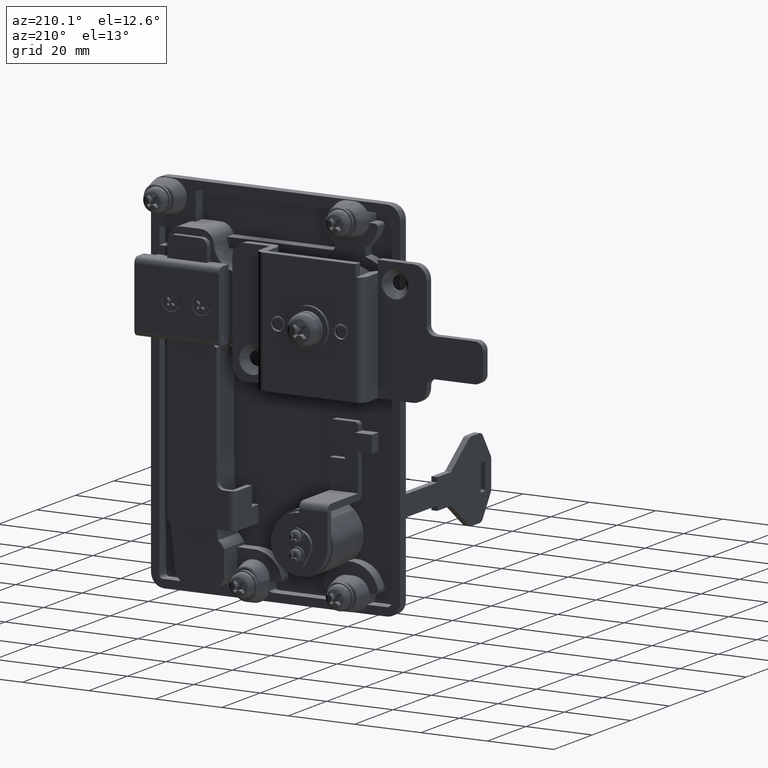
[diagram: clean part render]
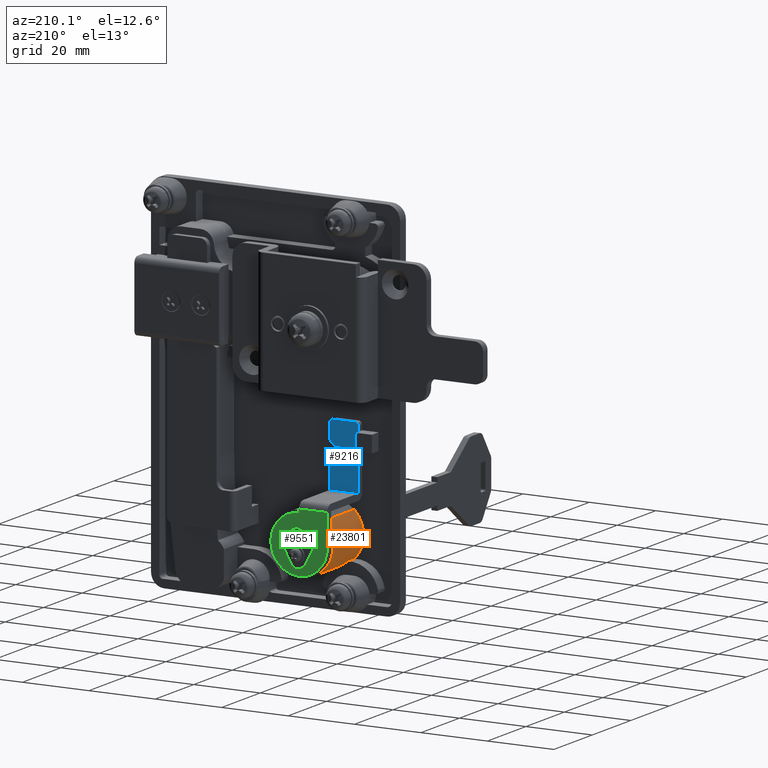
[diagram: same view with three faces highlighted in distinct colors, each labeled with its STEP entity id]
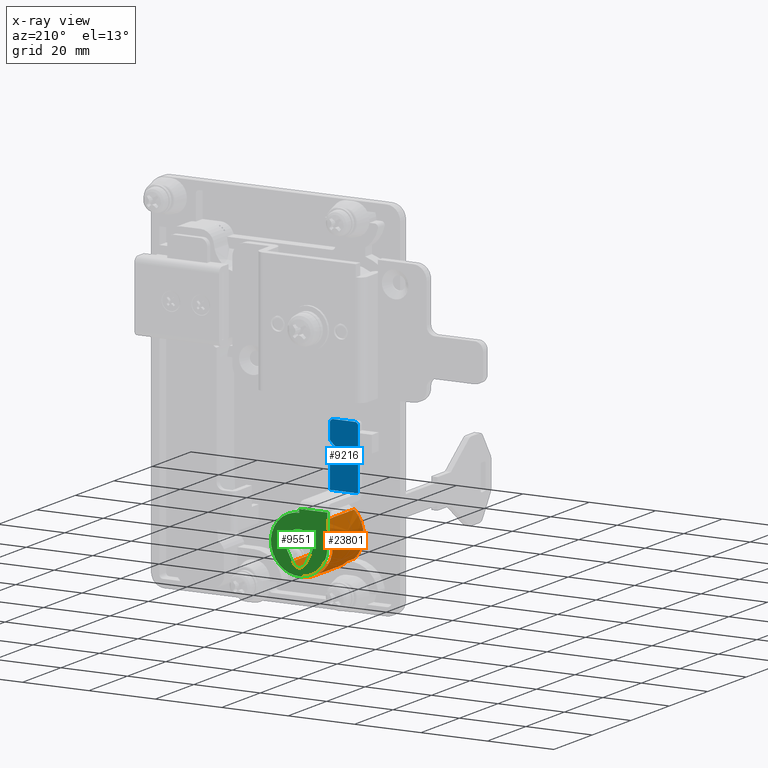
[diagram: x-ray of the same camera — body ghosted, the three highlighted faces saturated]
A machine part, auxiliary view with three faces highlighted in distinct colors.
The next image is the same camera in x-ray (body ghosted, the three faces saturated) — at least one of them is partly hidden behind the body in this view.
Their STEP definitions:

[orange] entity #23801 — the highlighted face is a freeform B-spline surface patch.
#23596=CARTESIAN_POINT('',(13.149139055522690,-8.800000000000003,-66.571244770811745));
#23597=VERTEX_POINT('',#23596);
#23627=CARTESIAN_POINT('',(0.849752320427711,-8.800000000000001,-53.428755227772783));
#23628=VERTEX_POINT('',#23627);
#23639=CARTESIAN_POINT('',(0.849751822958162,-24.800000000000001,-53.428754655632332));
#23640=VERTEX_POINT('',#23639);
#23641=CARTESIAN_POINT('',(0.849752320427711,-8.800000000000001,-53.428755227772783));
#23642=CARTESIAN_POINT('',(0.849751822958162,-24.800000000000001,-53.428754655632332));
#23643=QUASI_UNIFORM_CURVE('',1,(#23641,#23642),.UNSPECIFIED.,.F.,.U.);
#23644=EDGE_CURVE('',#23628,#23640,#23643,.T.);
#23661=CARTESIAN_POINT('',(13.149139675506570,-24.800000000000001,-66.571245228297272));
#23662=VERTEX_POINT('',#23661);
#23679=CARTESIAN_POINT('',(13.149139055522690,-8.800000000000003,-66.571244770811745));
#23680=CARTESIAN_POINT('',(13.149139675506570,-24.800000000000001,-66.571245228297272));
#23681=QUASI_UNIFORM_CURVE('',1,(#23679,#23680),.UNSPECIFIED.,.F.,.U.);
#23682=EDGE_CURVE('',#23597,#23662,#23681,.T.);
#23687=CARTESIAN_POINT('',(0.849751757659280,-8.400000000000000,-53.428754716742283));
#23688=CARTESIAN_POINT('',(-5.721493525598446,-8.400000000000000,-59.578448646301943));
#23689=CARTESIAN_POINT('',(0.428200403961224,-8.400000000000000,-66.149693929559675));
#23690=CARTESIAN_POINT('',(6.577894333520893,-8.400000000000000,-72.720939212817399));
#23691=CARTESIAN_POINT('',(13.149139616778619,-8.400000000000000,-66.571245283257724));
#23692=CARTESIAN_POINT('',(0.849751757659280,-25.210000000000001,-53.428754716742283));
#23693=CARTESIAN_POINT('',(-5.721493525598446,-25.210000000000008,-59.578448646301943));
#23694=CARTESIAN_POINT('',(0.428200403961224,-25.210000000000001,-66.149693929559675));
#23695=CARTESIAN_POINT('',(6.577894333520893,-25.210000000000008,-72.720939212817399));
#23696=CARTESIAN_POINT('',(13.149139616778619,-25.210000000000001,-66.571245283257724));
#23704=(BOUNDED_SURFACE()B_SPLINE_SURFACE(2,1,((#23687,#23692),(#23688,#23693),(#23689,#23694),(#23690,#23695),(#23691,#23696)),.UNSPECIFIED.,.F.,.F.,.U.)B_SPLINE_SURFACE_WITH_KNOTS((3,2,3),(2,2),(0.0,14.911688245431421,29.823376490862849),(0.0,16.809999999999999),.UNSPECIFIED.)GEOMETRIC_REPRESENTATION_ITEM()RATIONAL_B_SPLINE_SURFACE(((1.0,1.0),(0.707106781186548,0.707106781186548),(1.0,1.0),(0.707106781186548,0.707106781186548),(1.0,1.0)))REPRESENTATION_ITEM('')SURFACE());
#23705=CARTESIAN_POINT('',(6.999445687218950,-8.800000000000001,-68.999999999999986));
#23706=VERTEX_POINT('',#23705);
#23707=CARTESIAN_POINT('',(6.999445687218950,-8.800000000000001,-68.999999999999986));
#23708=CARTESIAN_POINT('',(7.598916230033220,-8.800000000000006,-69.000076862976030));
#23709=CARTESIAN_POINT('',(8.868358142735852,-8.799999999999988,-68.872725923430309));
#23710=CARTESIAN_POINT('',(10.557153614429980,-8.800000000000004,-68.329095483023593));
#23711=CARTESIAN_POINT('',(12.012130985436061,-8.799999999999985,-67.523747217347236));
#23712=CARTESIAN_POINT('',(12.788710070318491,-8.800000000000029,-66.908601915488589));
#23713=CARTESIAN_POINT('',(13.149139055522690,-8.800000000000003,-66.571244770811745));
#23714=B_SPLINE_CURVE_WITH_KNOTS('',3,(#23707,#23708,#23709,#23710,#23711,#23712,#23713),.UNSPECIFIED.,.F.,.U.,(4,1,1,1,4),(0.000000029451749,1.798411266824507,3.808397354786250,5.289445287865961,6.770485755350241),.UNSPECIFIED.);
#23715=EDGE_CURVE('',#23706,#23597,#23714,.T.);
#23716=ORIENTED_EDGE('',*,*,#23715,.T.);
#23717=ORIENTED_EDGE('',*,*,#23682,.T.);
#23718=CARTESIAN_POINT('',(5.959531722010261,-24.800000000000001,-68.939719175956611));
#23719=VERTEX_POINT('',#23718);
#23720=CARTESIAN_POINT('',(5.959531722010261,-24.800000000000001,-68.939719175956611));
#23721=CARTESIAN_POINT('',(6.646639215967803,-24.799999999999969,-69.019788215515732));
#23722=CARTESIAN_POINT('',(7.916465464633148,-24.800000000000029,-69.020208642118959));
#23723=CARTESIAN_POINT('',(9.795507943818885,-24.800000000000040,-68.620305146603883));
#23724=CARTESIAN_POINT('',(11.557371573417990,-24.799999999999859,-67.847832249981067));
#23725=CARTESIAN_POINT('',(12.644155532192631,-24.800000000000200,-67.044029763461069));
#23726=CARTESIAN_POINT('',(13.149139675506570,-24.800000000000001,-66.571245228297272));
#23727=B_SPLINE_CURVE_WITH_KNOTS('',3,(#23720,#23721,#23722,#23723,#23724,#23725,#23726),.UNSPECIFIED.,.F.,.U.,(4,1,1,1,4),(0.000000028163664,2.075262083605939,3.784311963711843,5.737486975085577,7.812749030528253),.UNSPECIFIED.);
#23728=EDGE_CURVE('',#23719,#23662,#23727,.T.);
#23729=ORIENTED_EDGE('',*,*,#23728,.F.);
#23730=CARTESIAN_POINT('',(5.959531722010261,-21.300000000000001,-68.939719175956611));
#23731=VERTEX_POINT('',#23730);
#23732=CARTESIAN_POINT('',(5.959531722010261,-24.800000000000001,-68.939719175956611));
#23733=CARTESIAN_POINT('',(5.959531722010261,-21.300000000000001,-68.939719175956611));
#23734=QUASI_UNIFORM_CURVE('',1,(#23732,#23733),.UNSPECIFIED.,.F.,.U.);
#23735=EDGE_CURVE('',#23719,#23731,#23734,.T.);
#23736=ORIENTED_EDGE('',*,*,#23735,.T.);
#23737=CARTESIAN_POINT('',(0.815886934019784,-21.300000000000001,-66.539388438205492));
#23738=VERTEX_POINT('',#23737);
#23739=CARTESIAN_POINT('',(0.815886934019784,-21.300000000000001,-66.539388438205492));
#23740=CARTESIAN_POINT('',(1.493078140854218,-21.300000000000011,-67.180369122410539));
#23741=CARTESIAN_POINT('',(2.747893586947899,-21.299999999999930,-68.041678810736599));
#23742=CARTESIAN_POINT('',(4.563472252580984,-21.300000000000139,-68.707102935622203));
#23743=CARTESIAN_POINT('',(5.541282604908172,-21.299999999999841,-68.891070695008636));
#23744=CARTESIAN_POINT('',(5.959531722010261,-21.300000000000001,-68.939719175956611));
#23745=B_SPLINE_CURVE_WITH_KNOTS('',3,(#23739,#23740,#23741,#23742,#23743,#23744),.UNSPECIFIED.,.F.,.U.,(4,1,1,4),(0.000000020316773,2.797149485198059,4.511503996902841,5.774723344580590),.UNSPECIFIED.);
#23746=EDGE_CURVE('',#23738,#23731,#23745,.T.);
#23747=ORIENTED_EDGE('',*,*,#23746,.F.);
#23748=CARTESIAN_POINT('',(0.815886934019784,-24.800000000000001,-66.539388438205492));
#23749=VERTEX_POINT('',#23748);
#23750=CARTESIAN_POINT('',(0.815886934019784,-21.300000000000001,-66.539388438205492));
#23751=CARTESIAN_POINT('',(0.815886934019784,-24.800000000000001,-66.539388438205492));
#23752=QUASI_UNIFORM_CURVE('',1,(#23750,#23751),.UNSPECIFIED.,.F.,.U.);
#23753=EDGE_CURVE('',#23738,#23749,#23752,.T.);
#23754=ORIENTED_EDGE('',*,*,#23753,.T.);
#23755=CARTESIAN_POINT('',(0.849751822958162,-24.800000000000001,-53.428754655632332));
#23756=CARTESIAN_POINT('',(0.374930837276018,-24.800000000000001,-53.872963650311291));
#23757=CARTESIAN_POINT('',(-0.377374662320128,-24.800000000000029,-54.748235879394571));
#23758=CARTESIAN_POINT('',(-1.195845604294726,-24.799999999999990,-56.181278606117857));
#23759=CARTESIAN_POINT('',(-1.647152215342902,-24.799999999999969,-57.405625119349132));
#23760=CARTESIAN_POINT('',(-1.938781937493781,-24.800000000000011,-58.713914400738190));
#23761=CARTESIAN_POINT('',(-2.035859503847158,-24.800000000000018,-59.938839214806002));
#23762=CARTESIAN_POINT('',(-1.936762426337531,-24.799999999999990,-61.276547082272238));
#23763=CARTESIAN_POINT('',(-1.644216596648400,-24.800000000000342,-62.664716593191692));
#23764=CARTESIAN_POINT('',(-1.130947619786312,-24.799999999999841,-63.950100620689703));
#23765=CARTESIAN_POINT('',(-0.304673771834939,-24.799999999999930,-65.330796177142659));
#23766=CARTESIAN_POINT('',(0.343359667951500,-24.800000000000040,-66.092743798900798));
#23767=CARTESIAN_POINT('',(0.815886934019784,-24.800000000000001,-66.539388438205492));
#23768=B_SPLINE_CURVE_WITH_KNOTS('',3,(#23755,#23756,#23757,#23758,#23759,#23760,#23761,#23762,#23763,#23764,#23765,#23766,#23767),.UNSPECIFIED.,.F.,.U.,(4,1,1,1,1,1,1,1,1,1,4),(0.000000098458500,1.950619620112633,3.442273646675655,4.933948335471690,5.851875512373375,7.458239082254107,8.605663886709564,9.867843278668843,11.703749543846991,12.736439467195190,14.687045205810310),.UNSPECIFIED.);
#23769=EDGE_CURVE('',#23640,#23749,#23768,.T.);
#23770=ORIENTED_EDGE('',*,*,#23769,.F.);
#23771=ORIENTED_EDGE('',*,*,#23644,.F.);
#23772=CARTESIAN_POINT('',(-2.000554312780537,-8.800000000000001,-60.000003037312403));
#23773=VERTEX_POINT('',#23772);
#23774=CARTESIAN_POINT('',(0.849752320427711,-8.800000000000001,-53.428755227772783));
#23775=CARTESIAN_POINT('',(0.457524219267665,-8.799999999999994,-53.795761713475272));
#23776=CARTESIAN_POINT('',(-0.337945349831769,-8.799999999999985,-54.686471264046993));
#23777=CARTESIAN_POINT('',(-1.178070090166174,-8.800000000000061,-56.117695891470269));
#23778=CARTESIAN_POINT('',(-1.829266931474796,-8.799999999999896,-57.928271419292933));
#23779=CARTESIAN_POINT('',(-2.000857966638305,-8.800000000000111,-59.194220934536091));
#23780=CARTESIAN_POINT('',(-2.000554312780537,-8.800000000000001,-60.000003037312403));
#23781=B_SPLINE_CURVE_WITH_KNOTS('',3,(#23774,#23775,#23776,#23777,#23778,#23779,#23780),.UNSPECIFIED.,.F.,.U.,(4,1,1,1,4),(0.000000026392839,1.611479012126827,3.568293046370655,4.949543778501131,7.366772808140190),.UNSPECIFIED.);
#23782=EDGE_CURVE('',#23628,#23773,#23781,.T.);
#23783=ORIENTED_EDGE('',*,*,#23782,.T.);
#23784=CARTESIAN_POINT('',(-2.000554312780537,-8.800000000000001,-60.000003037312403));
#23785=CARTESIAN_POINT('',(-2.000751717744824,-8.799999999999995,-60.736331708653822));
#23786=CARTESIAN_POINT('',(-1.846032564456571,-8.800000000000027,-61.987957790543113));
#23787=CARTESIAN_POINT('',(-1.232991345890535,-8.799999999999988,-63.770011344037528));
#23788=CARTESIAN_POINT('',(-0.366240624066635,-8.799999999999965,-65.278485182364093));
#23789=CARTESIAN_POINT('',(0.736538172074796,-8.800000000000088,-66.525521283173276));
#23790=CARTESIAN_POINT('',(1.889405820036898,-8.799999999999944,-67.448167046674541));
#23791=CARTESIAN_POINT('',(2.973818837447972,-8.800000000000013,-68.080172469319393));
#23792=CARTESIAN_POINT('',(4.200606271205323,-8.800000000000125,-68.588349282491393));
#23793=CARTESIAN_POINT('',(5.526838994057219,-8.799999999999654,-68.920550988307554));
#23794=CARTESIAN_POINT('',(6.520854355991013,-8.800000000000301,-69.000022480501556));
#23795=CARTESIAN_POINT('',(6.999445687218950,-8.800000000000001,-68.999999999999986));
#23796=B_SPLINE_CURVE_WITH_KNOTS('',3,(#23784,#23785,#23786,#23787,#23788,#23789,#23790,#23791,#23792,#23793,#23794,#23795),.UNSPECIFIED.,.F.,.U.,(4,1,1,1,1,1,1,1,1,4),(0.000000102336957,2.208938362130597,3.755208789851615,5.632843492472251,7.399923191921094,8.725328115786953,10.050695524447720,11.155185423652410,12.701470598359199,14.137253933988299),.UNSPECIFIED.);
#23797=EDGE_CURVE('',#23773,#23706,#23796,.T.);
#23798=ORIENTED_EDGE('',*,*,#23797,.T.);
#23799=EDGE_LOOP('',(#23716,#23717,#23729,#23736,#23747,#23754,#23770,#23771,#23783,#23798));
#23800=FACE_OUTER_BOUND('',#23799,.T.);
#23801=ADVANCED_FACE('',(#23800),#23704,.T.);

[blue] entity #9216 — the highlighted face is a freeform B-spline surface patch.
#9111=CARTESIAN_POINT('',(-1.925129296306403,-22.800000000000001,-49.449049963174332));
#9112=CARTESIAN_POINT('',(7.424020898732120,-22.800000000000001,-49.449049963174332));
#9113=CARTESIAN_POINT('',(-1.925129296306403,-22.800000000000001,-28.550949527205979));
#9114=CARTESIAN_POINT('',(7.424020898732120,-22.800000000000001,-28.550949527205979));
#9115=B_SPLINE_SURFACE_WITH_KNOTS('',1,1,((#9111,#9113),(#9112,#9114)),.UNSPECIFIED.,.F.,.F.,.U.,(2,2),(2,2),(0.0,9.349150195038522),(0.0,20.898100435968349),.UNSPECIFIED.);
#9116=CARTESIAN_POINT('',(-1.500554312781050,-22.800000000000001,-48.500000000000000));
#9117=VERTEX_POINT('',#9116);
#9118=CARTESIAN_POINT('',(6.999445687219000,-22.800000000000001,-48.500000000000000));
#9119=VERTEX_POINT('',#9118);
#9120=CARTESIAN_POINT('',(-1.500554312781050,-22.800000000000001,-48.500000000000000));
#9121=CARTESIAN_POINT('',(6.999445687219000,-22.800000000000001,-48.500000000000000));
#9122=QUASI_UNIFORM_CURVE('',1,(#9120,#9121),.UNSPECIFIED.,.F.,.U.);
#9123=EDGE_CURVE('',#9117,#9119,#9122,.T.);
#9124=ORIENTED_EDGE('',*,*,#9123,.F.);
#9125=CARTESIAN_POINT('',(-1.500554312781050,-22.800000000000001,-30.500000000000000));
#9126=VERTEX_POINT('',#9125);
#9127=CARTESIAN_POINT('',(-1.500554312781050,-22.800000000000001,-30.500000000000000));
#9128=CARTESIAN_POINT('',(-1.500554312781050,-22.800000000000001,-48.500000000000000));
#9129=QUASI_UNIFORM_CURVE('',1,(#9127,#9128),.UNSPECIFIED.,.F.,.U.);
#9130=EDGE_CURVE('',#9126,#9117,#9129,.T.);
#9131=ORIENTED_EDGE('',*,*,#9130,.F.);
#9132=CARTESIAN_POINT('',(-0.500554312781048,-22.800000000000001,-29.500000000000000));
#9133=VERTEX_POINT('',#9132);
#9134=CARTESIAN_POINT('',(-0.500554312781048,-22.800000000000001,-29.500000000000000));
#9135=CARTESIAN_POINT('',(-0.656035694248994,-22.800000000000040,-29.499740513765669));
#9136=CARTESIAN_POINT('',(-0.933956923196247,-22.799999999999930,-29.566203058491521));
#9137=CARTESIAN_POINT('',(-1.271750573112783,-22.800000000000072,-29.823120735835211));
#9138=CARTESIAN_POINT('',(-1.461154819491300,-22.800000000000001,-30.148178671779348));
#9139=CARTESIAN_POINT('',(-1.500580105296008,-22.799999999999962,-30.393651355680671));
#9140=CARTESIAN_POINT('',(-1.500554312781050,-22.800000000000001,-30.500000000000000));
#9141=B_SPLINE_CURVE_WITH_KNOTS('',3,(#9134,#9135,#9136,#9137,#9138,#9139,#9140),.UNSPECIFIED.,.F.,.U.,(4,1,1,1,4),(0.000000316501221,0.466345497262820,0.834493002449350,1.251763211211169,1.570835744397934),.UNSPECIFIED.);
#9142=EDGE_CURVE('',#9133,#9126,#9141,.T.);
#9143=ORIENTED_EDGE('',*,*,#9142,.F.);
#9144=CARTESIAN_POINT('',(5.999445687218950,-22.800000000000001,-29.500000000000000));
#9145=VERTEX_POINT('',#9144);
#9146=CARTESIAN_POINT('',(5.999445687218950,-22.800000000000001,-29.500000000000000));
#9147=CARTESIAN_POINT('',(-0.500554312781048,-22.800000000000001,-29.500000000000000));
#9148=QUASI_UNIFORM_CURVE('',1,(#9146,#9147),.UNSPECIFIED.,.F.,.U.);
#9149=EDGE_CURVE('',#9145,#9133,#9148,.T.);
#9150=ORIENTED_EDGE('',*,*,#9149,.F.);
#9151=CARTESIAN_POINT('',(6.999445687218950,-22.800000000000001,-30.500000000000000));
#9152=VERTEX_POINT('',#9151);
#9153=CARTESIAN_POINT('',(6.999445687218950,-22.800000000000001,-30.500000000000000));
#9154=CARTESIAN_POINT('',(6.999498464484405,-22.800000000000001,-30.393638525670841));
#9155=CARTESIAN_POINT('',(6.967811499588282,-22.800000000000011,-30.197329036259280));
#9156=CARTESIAN_POINT('',(6.823048154534193,-22.799999999999919,-29.900485652990142));
#9157=CARTESIAN_POINT('',(6.581285831122334,-22.800000000000232,-29.658649949622561));
#9158=CARTESIAN_POINT('',(6.277610210348446,-22.799999999999638,-29.524196651346710));
#9159=CARTESIAN_POINT('',(6.081251346209860,-22.800000000000370,-29.499985637366311));
#9160=CARTESIAN_POINT('',(5.999445687218950,-22.800000000000001,-29.500000000000000));
#9161=B_SPLINE_CURVE_WITH_KNOTS('',3,(#9153,#9154,#9155,#9156,#9157,#9158,#9159,#9160),.UNSPECIFIED.,.F.,.U.,(4,1,1,1,1,4),(0.000000316502047,0.319072849688409,0.589085057894518,0.981751003005262,1.325410543751386,1.570835744397907),.UNSPECIFIED.);
#9162=EDGE_CURVE('',#9152,#9145,#9161,.T.);
#9163=ORIENTED_EDGE('',*,*,#9162,.F.);
#9164=CARTESIAN_POINT('',(6.999445687218950,-22.800000000000001,-35.200000000000003));
#9165=VERTEX_POINT('',#9164);
#9166=CARTESIAN_POINT('',(6.999445687218950,-22.800000000000001,-35.200000000000003));
#9167=CARTESIAN_POINT('',(6.999445687218950,-22.800000000000001,-30.500000000000000));
#9168=QUASI_UNIFORM_CURVE('',1,(#9166,#9167),.UNSPECIFIED.,.F.,.U.);
#9169=EDGE_CURVE('',#9165,#9152,#9168,.T.);
#9170=ORIENTED_EDGE('',*,*,#9169,.F.);
#9171=CARTESIAN_POINT('',(5.780157481492820,-22.800000000000001,-36.419288205726197));
#9172=VERTEX_POINT('',#9171);
#9173=CARTESIAN_POINT('',(5.780157481492820,-22.800000000000001,-36.419288205726197));
#9174=CARTESIAN_POINT('',(6.999445687218950,-22.800000000000001,-35.200000000000003));
#9175=QUASI_UNIFORM_CURVE('',1,(#9173,#9174),.UNSPECIFIED.,.F.,.U.);
#9176=EDGE_CURVE('',#9172,#9165,#9175,.T.);
#9177=ORIENTED_EDGE('',*,*,#9176,.F.);
#9178=CARTESIAN_POINT('',(5.085445687218960,-22.800000000000001,-36.700000000000003));
#9179=VERTEX_POINT('',#9178);
#9180=CARTESIAN_POINT('',(5.085445687218960,-22.800000000000001,-36.700000000000003));
#9181=CARTESIAN_POINT('',(5.221473515640985,-22.800000000000018,-36.700179832611283));
#9182=CARTESIAN_POINT('',(5.477313513768912,-22.799999999999990,-36.646882687560620));
#9183=CARTESIAN_POINT('',(5.693895948510704,-22.800000000000011,-36.502741690395887));
#9184=CARTESIAN_POINT('',(5.780157481492820,-22.800000000000001,-36.419288205726197));
#9185=B_SPLINE_CURVE_WITH_KNOTS('',3,(#9180,#9181,#9182,#9183,#9184),.UNSPECIFIED.,.F.,.U.,(4,1,4),(0.000000063021350,0.408001085567559,0.768037570588722),.UNSPECIFIED.);
#9186=EDGE_CURVE('',#9179,#9172,#9185,.T.);
#9187=ORIENTED_EDGE('',*,*,#9186,.F.);
#9188=CARTESIAN_POINT('',(2.499445687218950,-22.800000000000001,-36.700000000000003));
#9189=VERTEX_POINT('',#9188);
#9190=CARTESIAN_POINT('',(2.499445687218950,-22.800000000000001,-36.700000000000003));
#9191=CARTESIAN_POINT('',(5.085445687218960,-22.800000000000001,-36.700000000000003));
#9192=QUASI_UNIFORM_CURVE('',1,(#9190,#9191),.UNSPECIFIED.,.F.,.U.);
#9193=EDGE_CURVE('',#9189,#9179,#9192,.T.);
#9194=ORIENTED_EDGE('',*,*,#9193,.F.);
#9195=CARTESIAN_POINT('',(2.499445687218950,-22.800000000000001,-39.700000000000003));
#9196=VERTEX_POINT('',#9195);
#9197=CARTESIAN_POINT('',(2.499445687218950,-22.800000000000001,-39.700000000000003));
#9198=CARTESIAN_POINT('',(2.499445687218950,-22.800000000000001,-36.700000000000003));
#9199=QUASI_UNIFORM_CURVE('',1,(#9197,#9198),.UNSPECIFIED.,.F.,.U.);
#9200=EDGE_CURVE('',#9196,#9189,#9199,.T.);
#9201=ORIENTED_EDGE('',*,*,#9200,.F.);
#9202=CARTESIAN_POINT('',(6.999445687218950,-22.800000000000001,-39.700000000000003));
#9203=VERTEX_POINT('',#9202);
#9204=CARTESIAN_POINT('',(6.999445687218950,-22.800000000000001,-39.700000000000003));
#9205=CARTESIAN_POINT('',(2.499445687218950,-22.800000000000001,-39.700000000000003));
#9206=QUASI_UNIFORM_CURVE('',1,(#9204,#9205),.UNSPECIFIED.,.F.,.U.);
#9207=EDGE_CURVE('',#9203,#9196,#9206,.T.);
#9208=ORIENTED_EDGE('',*,*,#9207,.F.);
#9209=CARTESIAN_POINT('',(6.999445687219000,-22.800000000000001,-48.500000000000000));
#9210=CARTESIAN_POINT('',(6.999445687218950,-22.800000000000001,-39.700000000000003));
#9211=QUASI_UNIFORM_CURVE('',1,(#9209,#9210),.UNSPECIFIED.,.F.,.U.);
#9212=EDGE_CURVE('',#9119,#9203,#9211,.T.);
#9213=ORIENTED_EDGE('',*,*,#9212,.F.);
#9214=EDGE_LOOP('',(#9124,#9131,#9143,#9150,#9163,#9170,#9177,#9187,#9194,#9201,#9208,#9213));
#9215=FACE_OUTER_BOUND('',#9214,.T.);
#9216=ADVANCED_FACE('',(#9215),#9115,.F.);

[green] entity #9551 — the highlighted face is a freeform B-spline surface patch.
#8911=CARTESIAN_POINT('',(6.999445687218950,-6.800000000000139,-50.500000000000000));
#8912=VERTEX_POINT('',#8911);
#8926=CARTESIAN_POINT('',(-1.500554312781050,-6.800000000000139,-50.500000000000000));
#8927=VERTEX_POINT('',#8926);
#8928=CARTESIAN_POINT('',(-1.500554312781050,-6.800000000000139,-50.500000000000000));
#8929=CARTESIAN_POINT('',(6.999445687218950,-6.800000000000139,-50.500000000000000));
#8930=QUASI_UNIFORM_CURVE('',1,(#8928,#8929),.UNSPECIFIED.,.F.,.U.);
#8931=EDGE_CURVE('',#8927,#8912,#8930,.T.);
#9420=CARTESIAN_POINT('',(-2.349704852720043,-6.800000000000000,-69.399084002222764));
#9421=CARTESIAN_POINT('',(16.348608151938450,-6.800000000000000,-69.399084002222764));
#9422=CARTESIAN_POINT('',(-2.349704852720043,-6.800000000000000,-49.600900311667168));
#9423=CARTESIAN_POINT('',(16.348608151938450,-6.800000000000000,-49.600900311667168));
#9424=B_SPLINE_SURFACE_WITH_KNOTS('',1,1,((#9420,#9422),(#9421,#9423)),.UNSPECIFIED.,.F.,.F.,.U.,(2,2),(2,2),(0.0,18.698313004658491),(0.0,19.798183690555600),.UNSPECIFIED.);
#9425=CARTESIAN_POINT('',(-1.500554312781050,-6.800000000000139,-60.0));
#9426=VERTEX_POINT('',#9425);
#9427=CARTESIAN_POINT('',(-1.500554312781050,-6.800000000000139,-50.500000000000000));
#9428=CARTESIAN_POINT('',(-1.500554312781050,-6.800000000000139,-60.0));
#9429=QUASI_UNIFORM_CURVE('',1,(#9427,#9428),.UNSPECIFIED.,.F.,.U.);
#9430=EDGE_CURVE('',#8927,#9426,#9429,.T.);
#9431=ORIENTED_EDGE('',*,*,#9430,.F.);
#9432=ORIENTED_EDGE('',*,*,#8931,.T.);
#9433=CARTESIAN_POINT('',(6.999445687218950,-6.800000000000139,-51.500000000000000));
#9434=VERTEX_POINT('',#9433);
#9435=CARTESIAN_POINT('',(6.999445687218950,-6.800000000000139,-51.500000000000000));
#9436=CARTESIAN_POINT('',(6.999445687218950,-6.800000000000139,-50.500000000000000));
#9437=QUASI_UNIFORM_CURVE('',1,(#9435,#9436),.UNSPECIFIED.,.F.,.U.);
#9438=EDGE_CURVE('',#9434,#8912,#9437,.T.);
#9439=ORIENTED_EDGE('',*,*,#9438,.F.);
#9440=CARTESIAN_POINT('',(13.009855296867061,-6.800000000000138,-66.010405670522545));
#9441=VERTEX_POINT('',#9440);
#9442=CARTESIAN_POINT('',(13.009855296867061,-6.800000000000138,-66.010405670522545));
#9443=CARTESIAN_POINT('',(13.563270715669230,-6.800000000000120,-65.457409713823111));
#9444=CARTESIAN_POINT('',(14.356678625555389,-6.800000000000171,-64.407098084205060));
#9445=CARTESIAN_POINT('',(15.110180731984910,-6.800000000000125,-62.707222555035358));
#9446=CARTESIAN_POINT('',(15.430696238675599,-6.800000000000118,-61.329208898619363));
#9447=CARTESIAN_POINT('',(15.534205665716071,-6.800000000000191,-59.896087829726689));
#9448=CARTESIAN_POINT('',(15.417226363508240,-6.800000000000062,-58.512422623482699));
#9449=CARTESIAN_POINT('',(15.056111874390821,-6.800000000000217,-57.199979849378913));
#9450=CARTESIAN_POINT('',(14.502973127694821,-6.800000000000140,-55.931068071282439));
#9451=CARTESIAN_POINT('',(13.770280901409480,-6.800000000000150,-54.781792303065437));
#9452=CARTESIAN_POINT('',(12.841065318076030,-6.800000000000129,-53.787767546544913));
#9453=CARTESIAN_POINT('',(11.785992599464519,-6.800000000000171,-52.932594786739863));
#9454=CARTESIAN_POINT('',(10.583605868772830,-6.800000000000092,-52.236744098117903));
#9455=CARTESIAN_POINT('',(8.903010920813960,-6.800000000000138,-51.649960020949173));
#9456=CARTESIAN_POINT('',(7.703552475394123,-6.800000000000207,-51.499805779137688));
#9457=CARTESIAN_POINT('',(6.999445687218950,-6.800000000000139,-51.500000000000000));
#9458=B_SPLINE_CURVE_WITH_KNOTS('',3,(#9442,#9443,#9444,#9445,#9446,#9447,#9448,#9449,#9450,#9451,#9452,#9453,#9454,#9455,#9456,#9457),.UNSPECIFIED.,.F.,.U.,(4,1,1,1,1,1,1,1,1,1,1,1,1,4),(0.000000241958734,2.346957230644005,3.911663857309051,5.554567618887761,6.571621332275266,8.214507513317088,9.700993820690602,10.639706697405520,12.360857708568711,13.769038606025880,14.707854249920210,16.429006916803910,17.915456647149039,20.027721069566649),.UNSPECIFIED.);
#9459=EDGE_CURVE('',#9441,#9434,#9458,.T.);
#9460=ORIENTED_EDGE('',*,*,#9459,.F.);
#9461=CARTESIAN_POINT('',(-1.500554312781050,-6.800000000000139,-60.0));
#9462=CARTESIAN_POINT('',(-1.501005920059546,-6.800000000000137,-60.860619502843790));
#9463=CARTESIAN_POINT('',(-1.300763138993001,-6.800000000000141,-62.164223558263878));
#9464=CARTESIAN_POINT('',(-0.666887452947129,-6.800000000000139,-63.741916581415637));
#9465=CARTESIAN_POINT('',(-0.007056657397847,-6.800000000000133,-64.870134484068927));
#9466=CARTESIAN_POINT('',(0.750850444687801,-6.800000000000146,-65.805268741526334));
#9467=CARTESIAN_POINT('',(1.709232942781486,-6.800000000000140,-66.692811463896589));
#9468=CARTESIAN_POINT('',(2.940831413966526,-6.800000000000139,-67.535148540119337));
#9469=CARTESIAN_POINT('',(4.586810361840816,-6.800000000000139,-68.225877051178585));
#9470=CARTESIAN_POINT('',(6.473924670000791,-6.800000000000138,-68.553299327706910));
#9471=CARTESIAN_POINT('',(8.255948358730414,-6.800000000000134,-68.465745096261202));
#9472=CARTESIAN_POINT('',(9.676317886504702,-6.800000000000147,-68.100566678065263));
#9473=CARTESIAN_POINT('',(10.903796505328360,-6.800000000000123,-67.583289875980213));
#9474=CARTESIAN_POINT('',(11.980541074605281,-6.800000000000146,-66.935660327647852));
#9475=CARTESIAN_POINT('',(12.696408774312919,-6.800000000000178,-66.323884531610588));
#9476=CARTESIAN_POINT('',(13.009855296867061,-6.800000000000138,-66.010405670522545));
#9477=B_SPLINE_CURVE_WITH_KNOTS('',3,(#9461,#9462,#9463,#9464,#9465,#9466,#9467,#9468,#9469,#9470,#9471,#9472,#9473,#9474,#9475,#9476),.UNSPECIFIED.,.F.,.U.,(4,1,1,1,1,1,1,1,1,1,1,1,1,4),(0.000000241945532,2.581677185058346,3.911664945363093,5.085167344357183,6.493367918216569,7.510435935615305,8.996839634887586,10.952608252982021,12.830226601453459,14.707858340990640,16.272547617351329,17.211363451840970,18.697810933263440,20.027726640390430),.UNSPECIFIED.);
#9478=EDGE_CURVE('',#9426,#9441,#9477,.T.);
#9479=ORIENTED_EDGE('',*,*,#9478,.F.);
#9480=EDGE_LOOP('',(#9431,#9432,#9439,#9460,#9479));
#9481=FACE_OUTER_BOUND('',#9480,.T.);
#9482=CARTESIAN_POINT('',(5.152445687218861,-6.800000000000000,-65.199999999999989));
#9483=VERTEX_POINT('',#9482);
#9484=CARTESIAN_POINT('',(3.394445877589700,-6.800000000000000,-61.953000351612097));
#9485=VERTEX_POINT('',#9484);
#9486=CARTESIAN_POINT('',(5.152445687218861,-6.800000000000000,-65.199999999999989));
#9487=CARTESIAN_POINT('',(3.394445877589700,-6.800000000000000,-61.953000351612097));
#9488=QUASI_UNIFORM_CURVE('',1,(#9486,#9487),.UNSPECIFIED.,.F.,.U.);
#9489=EDGE_CURVE('',#9483,#9485,#9488,.T.);
#9490=ORIENTED_EDGE('',*,*,#9489,.F.);
#9491=CARTESIAN_POINT('',(8.846445687218930,-6.800000000000000,-65.199999999999989));
#9492=VERTEX_POINT('',#9491);
#9493=CARTESIAN_POINT('',(5.152445687218861,-6.800000000000000,-65.199999999999989));
#9494=CARTESIAN_POINT('',(5.230767561982582,-6.800000000000010,-65.344720972194068));
#9495=CARTESIAN_POINT('',(5.435300481024645,-6.799999999999984,-65.635004410447308));
#9496=CARTESIAN_POINT('',(5.778505734249898,-6.800000000000019,-65.927147850084964));
#9497=CARTESIAN_POINT('',(6.180951939377756,-6.799999999999991,-66.148936745562651));
#9498=CARTESIAN_POINT('',(6.575771634708539,-6.800000000000019,-66.275666737210230));
#9499=CARTESIAN_POINT('',(7.082023144229503,-6.799999999999973,-66.318292846145383));
#9500=CARTESIAN_POINT('',(7.539321208500027,-6.799999999999999,-66.248661322877993));
#9501=CARTESIAN_POINT('',(8.022186721360196,-6.799999999999994,-66.057074018987095));
#9502=CARTESIAN_POINT('',(8.478723470668729,-6.800000000000045,-65.736028947447551));
#9503=CARTESIAN_POINT('',(8.740220763768123,-6.799999999999884,-65.396476099695107));
#9504=CARTESIAN_POINT('',(8.846445687218930,-6.800000000000000,-65.199999999999989));
#9505=B_SPLINE_CURVE_WITH_KNOTS('',3,(#9493,#9494,#9495,#9496,#9497,#9498,#9499,#9500,#9501,#9502,#9503,#9504),.UNSPECIFIED.,.F.,.U.,(4,1,1,1,1,1,1,1,1,4),(0.000000388309262,0.493674485570257,1.057953238237481,1.340079271859112,1.869062285813278,2.292173436132634,2.856459204233280,3.244393419599334,3.843925926201354,4.513942947041000),.UNSPECIFIED.);
#9506=EDGE_CURVE('',#9483,#9492,#9505,.T.);
#9507=ORIENTED_EDGE('',*,*,#9506,.T.);
#9508=CARTESIAN_POINT('',(10.604445630461340,-6.800000000000000,-61.953000104830600));
#9509=VERTEX_POINT('',#9508);
#9510=CARTESIAN_POINT('',(10.604445630461340,-6.800000000000000,-61.953000104830600));
#9511=CARTESIAN_POINT('',(8.846445687218930,-6.800000000000000,-65.199999999999989));
#9512=QUASI_UNIFORM_CURVE('',1,(#9510,#9511),.UNSPECIFIED.,.F.,.U.);
#9513=EDGE_CURVE('',#9509,#9492,#9512,.T.);
#9514=ORIENTED_EDGE('',*,*,#9513,.F.);
#9515=CARTESIAN_POINT('',(6.999441076117178,-6.800000000000000,-55.901699563837411));
#9516=VERTEX_POINT('',#9515);
#9517=CARTESIAN_POINT('',(10.604445630461340,-6.800000000000000,-61.953000104830600));
#9518=CARTESIAN_POINT('',(10.772658072747539,-6.800000000000000,-61.642566581198757));
#9519=CARTESIAN_POINT('',(10.964105978518891,-6.800000000000004,-61.144048311476723));
#9520=CARTESIAN_POINT('',(11.101350089530561,-6.800000000000001,-60.359886320211281));
#9521=CARTESIAN_POINT('',(11.110836505768541,-6.800000000000014,-59.561764853268258));
#9522=CARTESIAN_POINT('',(10.926264975180610,-6.799999999999985,-58.713808989146628));
#9523=CARTESIAN_POINT('',(10.545641542729459,-6.800000000000029,-57.889077557257181));
#9524=CARTESIAN_POINT('',(9.993073172558525,-6.799999999999978,-57.137599481024672));
#9525=CARTESIAN_POINT('',(9.303791381006143,-6.800000000000028,-56.573009327676523));
#9526=CARTESIAN_POINT('',(8.556556711905145,-6.799999999999928,-56.187515470411647));
#9527=CARTESIAN_POINT('',(7.837959214379684,-6.800000000000196,-55.959836894289190));
#9528=CARTESIAN_POINT('',(7.286302221991138,-6.799999999999776,-55.901658400498569));
#9529=CARTESIAN_POINT('',(6.999441076117178,-6.800000000000000,-55.901699563837411));
#9530=B_SPLINE_CURVE_WITH_KNOTS('',3,(#9517,#9518,#9519,#9520,#9521,#9522,#9523,#9524,#9525,#9526,#9527,#9528,#9529),.UNSPECIFIED.,.F.,.U.,(4,1,1,1,1,1,1,1,1,1,4),(0.000000268371858,1.059197811908626,1.588842557883933,2.383274202007848,3.442503023726372,4.170756394395486,5.097497241327003,6.222963516586759,6.818788549853529,7.613245982635786,8.473828723938219),.UNSPECIFIED.);
#9531=EDGE_CURVE('',#9509,#9516,#9530,.T.);
#9532=ORIENTED_EDGE('',*,*,#9531,.T.);
#9533=CARTESIAN_POINT('',(6.999441076117178,-6.800000000000000,-55.901699563837411));
#9534=CARTESIAN_POINT('',(6.624292447052742,-6.799999999999998,-55.901573293253627));
#9535=CARTESIAN_POINT('',(5.984417235325833,-6.800000000000002,-55.990168355704803));
#9536=CARTESIAN_POINT('',(5.240714970118488,-6.800000000000011,-56.279905661386437));
#9537=CARTESIAN_POINT('',(4.571209631539301,-6.799999999999970,-56.667478591063563));
#9538=CARTESIAN_POINT('',(3.879591768611344,-6.800000000000028,-57.262432270525593));
#9539=CARTESIAN_POINT('',(3.287868416207313,-6.799999999999996,-58.154471820421037));
#9540=CARTESIAN_POINT('',(3.002367624411269,-6.800000000000001,-58.995677015913273));
#9541=CARTESIAN_POINT('',(2.890225503092101,-6.800000000000013,-59.739143360240682));
#9542=CARTESIAN_POINT('',(2.897790359393972,-6.799999999999970,-60.382053899841658));
#9543=CARTESIAN_POINT('',(3.041455933733408,-6.800000000000048,-61.165513049957319));
#9544=CARTESIAN_POINT('',(3.236764464247535,-6.799999999999916,-61.661954923691148));
#9545=CARTESIAN_POINT('',(3.394445877589700,-6.800000000000000,-61.953000351612097));
#9546=B_SPLINE_CURVE_WITH_KNOTS('',3,(#9533,#9534,#9535,#9536,#9537,#9538,#9539,#9540,#9541,#9542,#9543,#9544,#9545),.UNSPECIFIED.,.F.,.U.,(4,1,1,1,1,1,1,1,1,1,4),(0.000000268384962,1.125424592506873,1.919844732240303,2.383271687083126,3.442499391129493,4.634067481998706,5.560917963401934,6.090552859101511,6.884995045407925,7.480797886173702,8.473819782073749),.UNSPECIFIED.);
#9547=EDGE_CURVE('',#9516,#9485,#9546,.T.);
#9548=ORIENTED_EDGE('',*,*,#9547,.T.);
#9549=EDGE_LOOP('',(#9490,#9507,#9514,#9532,#9548));
#9550=FACE_BOUND('',#9549,.T.);
#9551=ADVANCED_FACE('',(#9481,#9550),#9424,.F.);